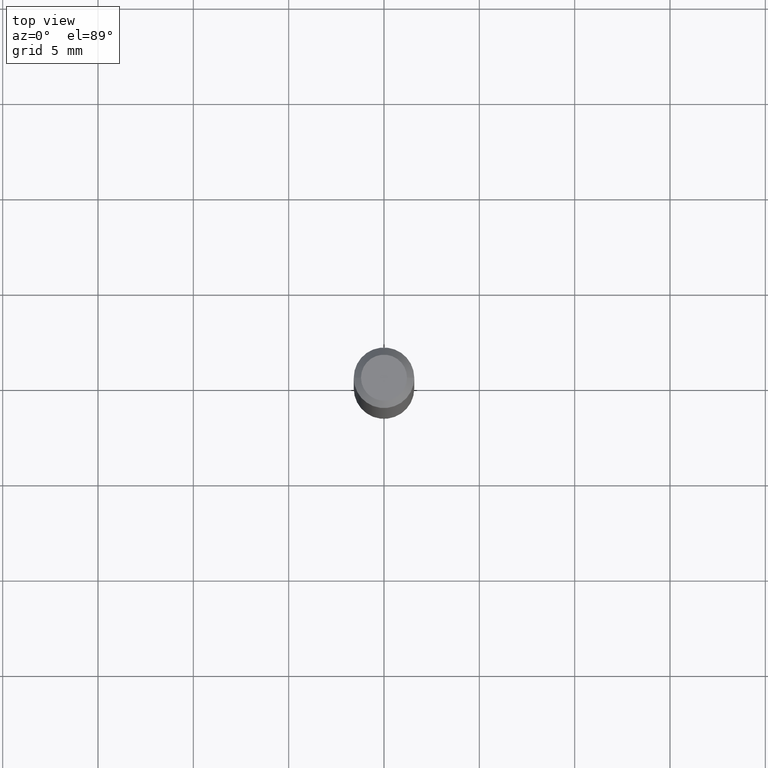
[diagram: clean part render]
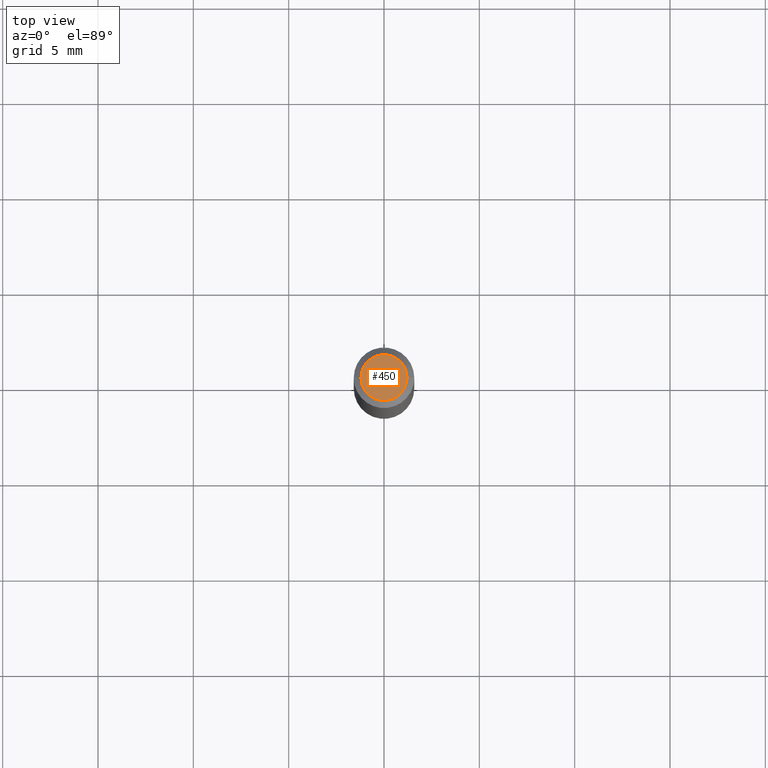
[diagram: same view with one face highlighted and labeled with its STEP entity id]
A machine part, top view. The second image highlights one B-rep face of the part: STEP entity #450.
In plain terms, the highlighted planar face has unit normal (0, -0, -1).
Its self-contained STEP definition (entity closure, byte-faithful):
#1 = VERTEX_POINT ( 'NONE', #51 ) ;
#31 = ORIENTED_EDGE ( 'NONE', *, *, #308, .T. ) ;
#35 = DIRECTION ( 'NONE',  ( -2.445468806185136597E-29, 3.491481338843145583E-15, 1.000000000000000000 ) ) ;
#51 = CARTESIAN_POINT ( 'NONE',  ( 0.04750000000000000749, -4.035134999187568762E-16, 2.731847993664288856E-16 ) ) ;
#59 = EDGE_CURVE ( 'NONE', #1, #82, #448, .T. ) ;
#82 = VERTEX_POINT ( 'NONE', #260 ) ;
#104 = DIRECTION ( 'NONE',  ( 1.000000000000000000, -6.982962677686266711E-15, 4.852736867747365086E-29 ) ) ;
#142 = DIRECTION ( 'NONE',  ( 2.438088387897960049E-29, -3.491481338843145188E-15, -1.000000000000000000 ) ) ;
#187 = AXIS2_PLACEMENT_3D ( 'NONE', #245, #35, #253 ) ;
#222 = CARTESIAN_POINT ( 'NONE',  ( 3.316907271900976589E-16, 0.04750000000000000749, -2.925296391183627249E-17 ) ) ;
#245 = CARTESIAN_POINT ( 'NONE',  ( -6.680649051745406845E-45, 9.538196290434862081E-31, 2.731847993664263218E-16 ) ) ;
#253 = DIRECTION ( 'NONE',  ( 1.000000000000000000, -6.982962677686266711E-15, 4.852736867747365086E-29 ) ) ;
#256 = DIRECTION ( 'NONE',  ( -2.445468806185136597E-29, 3.491481338843145583E-15, 1.000000000000000000 ) ) ;
#260 = CARTESIAN_POINT ( 'NONE',  ( -0.04750000000000000749, 3.578768372314221353E-16, 2.731847993664239060E-16 ) ) ;
#290 = EDGE_LOOP ( 'NONE', ( #31, #441 ) ) ;
#298 = DIRECTION ( 'NONE',  ( -1.000000000000000000, 6.982962677686265922E-15, -4.876176775795935793E-29 ) ) ;
#308 = EDGE_CURVE ( 'NONE', #82, #1, #310, .T. ) ;
#310 = CIRCLE ( 'NONE', #187, 0.04750000000000000749 ) ;
#336 = CARTESIAN_POINT ( 'NONE',  ( -6.680649051745406845E-45, 9.538196290434862081E-31, 2.731847993664263218E-16 ) ) ;
#368 = FACE_OUTER_BOUND ( 'NONE', #290, .T. ) ;
#406 = PLANE ( 'NONE',  #459 ) ;
#410 = AXIS2_PLACEMENT_3D ( 'NONE', #336, #256, #104 ) ;
#441 = ORIENTED_EDGE ( 'NONE', *, *, #59, .T. ) ;
#448 = CIRCLE ( 'NONE', #410, 0.04750000000000000749 ) ;
#450 = ADVANCED_FACE ( 'NONE', ( #368 ), #406, .F. ) ;
#459 = AXIS2_PLACEMENT_3D ( 'NONE', #222, #142, #298 ) ;